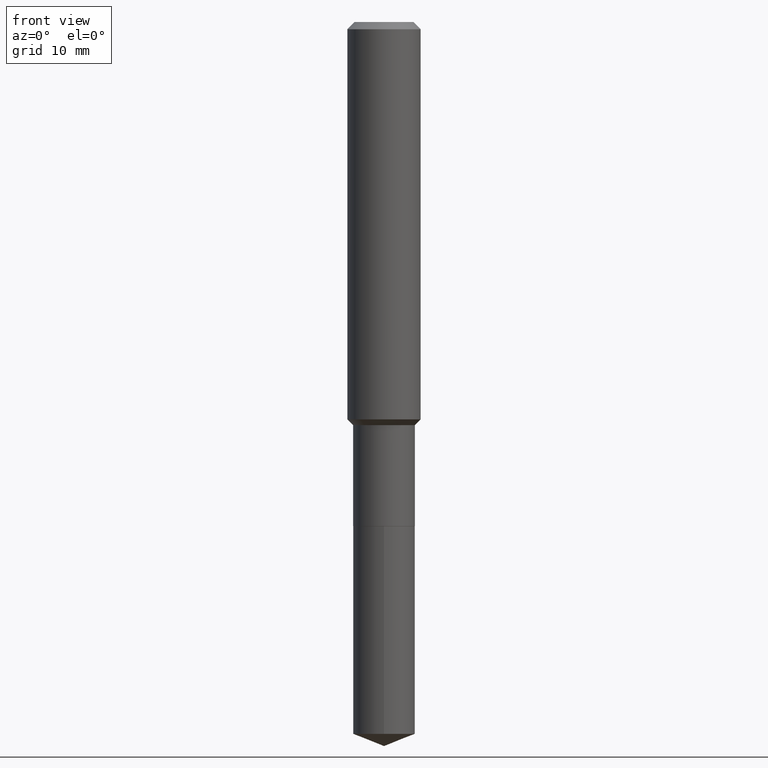
[diagram: clean part render]
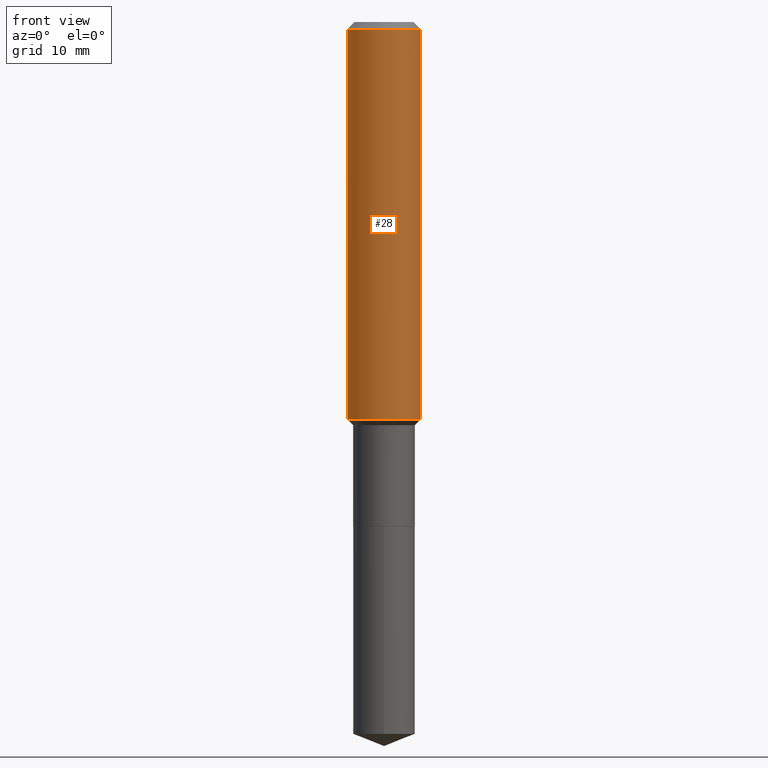
[diagram: same view with one face highlighted and labeled with its STEP entity id]
A machine part, front view. The second image highlights one B-rep face of the part: STEP entity #28.
In plain terms, the highlighted cylindrical surface (partial cylindrical patch) has radius 4.0005 mm, axis along (-0, 0, 1).
Its self-contained STEP definition (entity closure, byte-faithful):
#4 = ORIENTED_EDGE ( 'NONE', *, *, #290, .F. ) ;
#8 = LINE ( 'NONE', #201, #425 ) ;
#23 = CARTESIAN_POINT ( 'NONE',  ( 0.000000000000000000, 0.000000000000000000, 0.000000000000000000 ) ) ;
#27 = CIRCLE ( 'NONE', #383, 0.1575000000000000011 ) ;
#28 = ADVANCED_FACE ( 'NONE', ( #414 ), #408, .T. ) ;
#39 = ORIENTED_EDGE ( 'NONE', *, *, #411, .T. ) ;
#43 = AXIS2_PLACEMENT_3D ( 'NONE', #245, #47, #459 ) ;
#47 = DIRECTION ( 'NONE',  ( -2.445468806185136597E-29, 3.491481338843145583E-15, 1.000000000000000000 ) ) ;
#62 = DIRECTION ( 'NONE',  ( 1.000000000000000000, -6.982962677686267499E-15, 4.876176775795936353E-29 ) ) ;
#82 = DIRECTION ( 'NONE',  ( -2.445468806185136877E-29, 3.491481338843145188E-15, 1.000000000000000000 ) ) ;
#101 = DIRECTION ( 'NONE',  ( -2.445468806185136597E-29, 3.491481338843145583E-15, 1.000000000000000000 ) ) ;
#119 = LINE ( 'NONE', #316, #127 ) ;
#123 = DIRECTION ( 'NONE',  ( -2.445468806185136877E-29, 3.491481338843145188E-15, 1.000000000000000000 ) ) ;
#124 = ORIENTED_EDGE ( 'NONE', *, *, #178, .F. ) ;
#127 = VECTOR ( 'NONE', #82, 39.37007874015748143 ) ;
#162 = CARTESIAN_POINT ( 'NONE',  ( 0.1575000000000001954, -7.059949841207779867E-15, -1.707049999999999734 ) ) ;
#175 = AXIS2_PLACEMENT_3D ( 'NONE', #23, #101, #62 ) ;
#178 = EDGE_CURVE ( 'NONE', #308, #402, #27, .T. ) ;
#191 = DIRECTION ( 'NONE',  ( -2.445468806185136597E-29, 3.491481338843145583E-15, 1.000000000000000000 ) ) ;
#201 = CARTESIAN_POINT ( 'NONE',  ( -0.1575000000000000844, 1.119104808822158392E-15, -7.747322767151481189E-30 ) ) ;
#245 = CARTESIAN_POINT ( 'NONE',  ( 4.174537525598337128E-29, -5.960133219472190809E-15, -1.707049999999999734 ) ) ;
#256 = CARTESIAN_POINT ( 'NONE',  ( -0.1575000000000001954, -4.841028410650031628E-15, -1.707049999999999734 ) ) ;
#269 = CARTESIAN_POINT ( 'NONE',  ( 0.1575000000000000011, -1.209798283909146741E-15, -0.03150000000000019451 ) ) ;
#279 = CARTESIAN_POINT ( 'NONE',  ( -0.1575000000000000011, -1.915952632000715952E-15, -0.03150000000000019451 ) ) ;
#290 = EDGE_CURVE ( 'NONE', #464, #308, #8, .T. ) ;
#297 = EDGE_CURVE ( 'NONE', #464, #436, #367, .T. ) ;
#298 = DIRECTION ( 'NONE',  ( 1.000000000000000000, -6.982962677686265922E-15, 0.000000000000000000 ) ) ;
#308 = VERTEX_POINT ( 'NONE', #279 ) ;
#316 = CARTESIAN_POINT ( 'NONE',  ( 0.1575000000000000844, -1.099816621735587677E-15, 7.679978421878603638E-30 ) ) ;
#325 = ORIENTED_EDGE ( 'NONE', *, *, #297, .T. ) ;
#340 = CARTESIAN_POINT ( 'NONE',  ( 7.703226739483228723E-31, -1.099816621735597661E-16, -0.03150000000000019451 ) ) ;
#367 = CIRCLE ( 'NONE', #43, 0.1575000000000001954 ) ;
#383 = AXIS2_PLACEMENT_3D ( 'NONE', #340, #191, #298 ) ;
#390 = EDGE_LOOP ( 'NONE', ( #4, #325, #39, #124 ) ) ;
#402 = VERTEX_POINT ( 'NONE', #269 ) ;
#408 = CYLINDRICAL_SURFACE ( 'NONE', #175, 0.1575000000000000844 ) ;
#411 = EDGE_CURVE ( 'NONE', #436, #402, #119, .T. ) ;
#414 = FACE_OUTER_BOUND ( 'NONE', #390, .T. ) ;
#425 = VECTOR ( 'NONE', #123, 39.37007874015748143 ) ;
#436 = VERTEX_POINT ( 'NONE', #162 ) ;
#459 = DIRECTION ( 'NONE',  ( 1.000000000000000000, -6.982962677686265922E-15, 0.000000000000000000 ) ) ;
#464 = VERTEX_POINT ( 'NONE', #256 ) ;